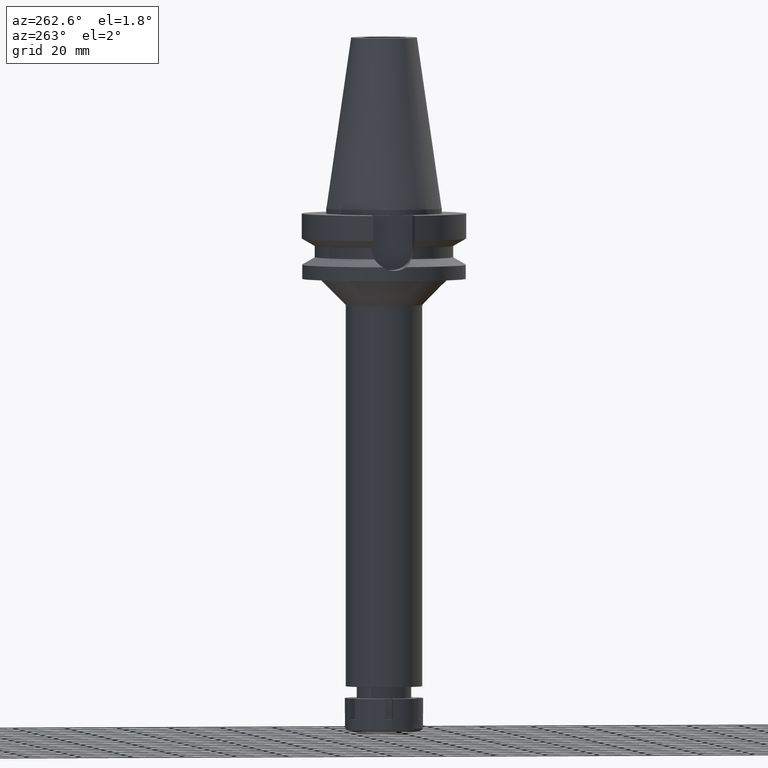
[diagram: clean part render]
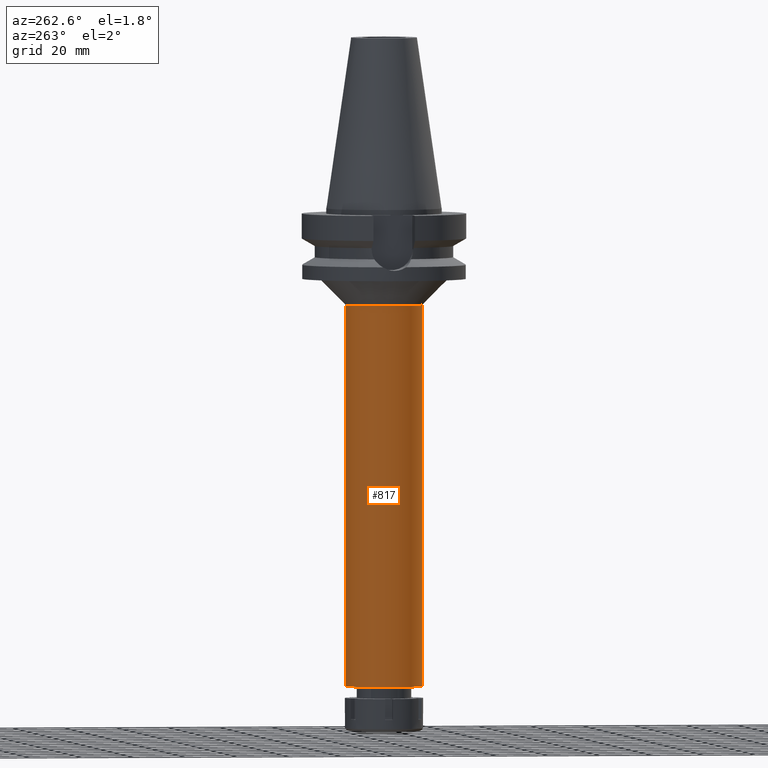
[diagram: same view with one face highlighted and labeled with its STEP entity id]
A machine part, auxiliary view. The second image highlights one B-rep face of the part: STEP entity #817.
In plain terms, the highlighted cylindrical surface (partial cylindrical patch) has radius 14.75 mm, axis along (0, 0, -1).
Its self-contained STEP definition (entity closure, byte-faithful):
#7 = DIRECTION ( 'NONE',  ( 0.0000000000000000000, 1.000000000000000000, 0.0000000000000000000 ) ) ;
#29 = VERTEX_POINT ( 'NONE', #909 ) ;
#202 = VERTEX_POINT ( 'NONE', #1090 ) ;
#262 = CARTESIAN_POINT ( 'NONE',  ( 0.0000000000000000000, -14.75000000000000000, -37.00000000000000000 ) ) ;
#278 = LINE ( 'NONE', #298, #2695 ) ;
#298 = CARTESIAN_POINT ( 'NONE',  ( 0.0000000000000000000, -14.75000000000000000, -37.00000000000000000 ) ) ;
#718 = DIRECTION ( 'NONE',  ( 0.0000000000000000000, 0.0000000000000000000, -1.000000000000000000 ) ) ;
#817 = ADVANCED_FACE ( 'NONE', ( #1678 ), #1404, .T. ) ;
#909 = CARTESIAN_POINT ( 'NONE',  ( 0.0000000000000000000, -14.75000000000000000, -183.0000000000000000 ) ) ;
#965 = ORIENTED_EDGE ( 'NONE', *, *, #1223, .T. ) ;
#1090 = CARTESIAN_POINT ( 'NONE',  ( 0.0000000000000000000, 14.75000000000000000, -37.00000000000000000 ) ) ;
#1120 = DIRECTION ( 'NONE',  ( 0.0000000000000000000, 0.0000000000000000000, -1.000000000000000000 ) ) ;
#1223 = EDGE_CURVE ( 'NONE', #3121, #29, #2420, .T. ) ;
#1229 = ORIENTED_EDGE ( 'NONE', *, *, #1535, .T. ) ;
#1261 = VERTEX_POINT ( 'NONE', #262 ) ;
#1404 = CYLINDRICAL_SURFACE ( 'NONE', #3012, 14.75000000000000000 ) ;
#1463 = CIRCLE ( 'NONE', #1584, 14.75000000000000000 ) ;
#1535 = EDGE_CURVE ( 'NONE', #1261, #202, #1463, .T. ) ;
#1584 = AXIS2_PLACEMENT_3D ( 'NONE', #1946, #2466, #1614 ) ;
#1614 = DIRECTION ( 'NONE',  ( 0.0000000000000000000, -1.000000000000000000, 0.0000000000000000000 ) ) ;
#1615 = ORIENTED_EDGE ( 'NONE', *, *, #1974, .T. ) ;
#1678 = FACE_OUTER_BOUND ( 'NONE', #2693, .T. ) ;
#1839 = ORIENTED_EDGE ( 'NONE', *, *, #3386, .F. ) ;
#1928 = CARTESIAN_POINT ( 'NONE',  ( 0.0000000000000000000, 2.183790172239999946E-14, -183.0000000000000000 ) ) ;
#1946 = CARTESIAN_POINT ( 'NONE',  ( 0.0000000000000000000, 0.0000000000000000000, -37.00000000000000000 ) ) ;
#1974 = EDGE_CURVE ( 'NONE', #202, #3121, #3517, .T. ) ;
#2205 = CARTESIAN_POINT ( 'NONE',  ( 0.0000000000000000000, 2.183790172239999946E-14, 78.32000000000000739 ) ) ;
#2420 = CIRCLE ( 'NONE', #2898, 14.75000000000000000 ) ;
#2436 = CARTESIAN_POINT ( 'NONE',  ( 0.0000000000000000000, 14.75000000000000000, -183.0000000000000000 ) ) ;
#2466 = DIRECTION ( 'NONE',  ( 0.0000000000000000000, 0.0000000000000000000, -1.000000000000000000 ) ) ;
#2693 = EDGE_LOOP ( 'NONE', ( #965, #1839, #1229, #1615 ) ) ;
#2695 = VECTOR ( 'NONE', #3141, 1000.000000000000000 ) ;
#2898 = AXIS2_PLACEMENT_3D ( 'NONE', #1928, #3051, #7 ) ;
#2936 = CARTESIAN_POINT ( 'NONE',  ( 0.0000000000000000000, 14.75000000000000000, -37.00000000000000000 ) ) ;
#2938 = VECTOR ( 'NONE', #718, 1000.000000000000000 ) ;
#3012 = AXIS2_PLACEMENT_3D ( 'NONE', #2205, #1120, #3401 ) ;
#3051 = DIRECTION ( 'NONE',  ( 0.0000000000000000000, 0.0000000000000000000, 1.000000000000000000 ) ) ;
#3121 = VERTEX_POINT ( 'NONE', #2436 ) ;
#3141 = DIRECTION ( 'NONE',  ( 0.0000000000000000000, 0.0000000000000000000, -1.000000000000000000 ) ) ;
#3386 = EDGE_CURVE ( 'NONE', #1261, #29, #278, .T. ) ;
#3401 = DIRECTION ( 'NONE',  ( 0.0000000000000000000, -1.000000000000000000, 0.0000000000000000000 ) ) ;
#3517 = LINE ( 'NONE', #2936, #2938 ) ;